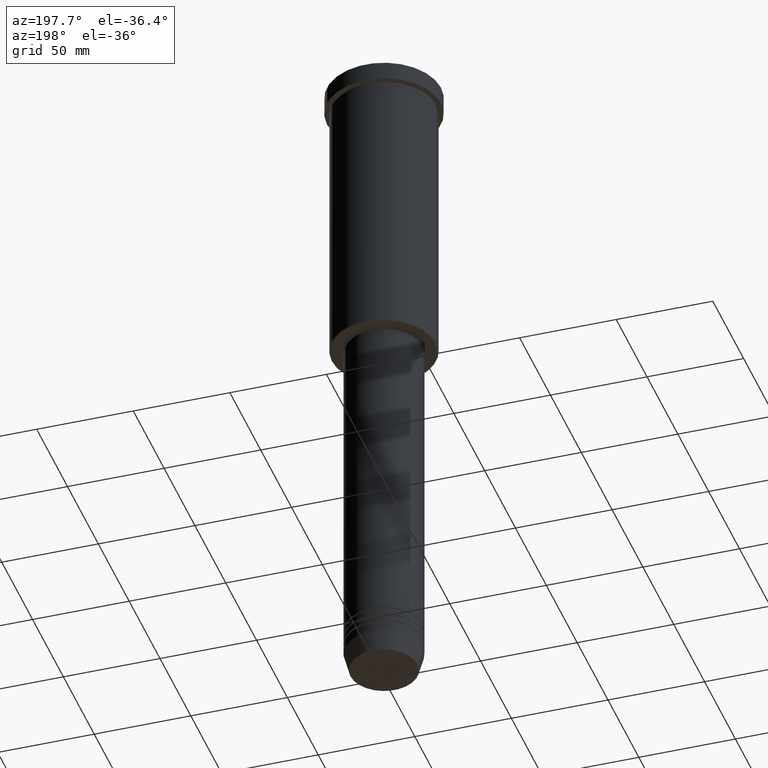
[diagram: clean part render]
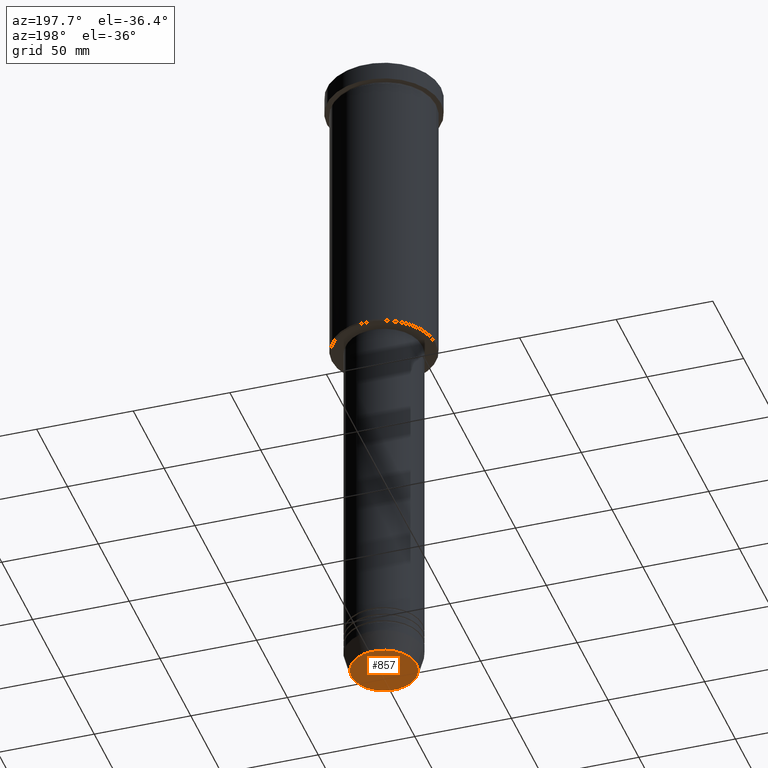
[diagram: same view with one face highlighted and labeled with its STEP entity id]
A machine part, auxiliary view. The second image highlights one B-rep face of the part: STEP entity #857.
In plain terms, the highlighted planar face has unit normal (0, -0, 1).
Its self-contained STEP definition (entity closure, byte-faithful):
#48 = DIRECTION ( 'NONE',  ( 0.000000000000000000, 0.000000000000000000, -1.000000000000000000 ) ) ;
#70 = PLANE ( 'NONE',  #1166 ) ;
#191 = CARTESIAN_POINT ( 'NONE',  ( -16.93684458169928675, 2.103738199747889592E-15, -351.0000000000000568 ) ) ;
#202 = VERTEX_POINT ( 'NONE', #191 ) ;
#258 = DIRECTION ( 'NONE',  ( 0.000000000000000000, -0.000000000000000000, 1.000000000000000000 ) ) ;
#307 = EDGE_LOOP ( 'NONE', ( #724, #927 ) ) ;
#504 = CIRCLE ( 'NONE', #1056, 16.93684458169928675 ) ;
#536 = CARTESIAN_POINT ( 'NONE',  ( 0.000000000000000000, 0.000000000000000000, -351.0000000000000568 ) ) ;
#617 = FACE_OUTER_BOUND ( 'NONE', #307, .T. ) ;
#625 = DIRECTION ( 'NONE',  ( 1.000000000000000000, 0.000000000000000000, 0.000000000000000000 ) ) ;
#637 = CIRCLE ( 'NONE', #1108, 16.93684458169928675 ) ;
#716 = DIRECTION ( 'NONE',  ( 1.000000000000000000, 0.000000000000000000, 0.000000000000000000 ) ) ;
#724 = ORIENTED_EDGE ( 'NONE', *, *, #1137, .T. ) ;
#808 = EDGE_CURVE ( 'NONE', #202, #1147, #637, .T. ) ;
#857 = ADVANCED_FACE ( 'NONE', ( #617 ), #70, .F. ) ;
#927 = ORIENTED_EDGE ( 'NONE', *, *, #808, .T. ) ;
#1038 = CARTESIAN_POINT ( 'NONE',  ( 0.000000000000000000, 0.000000000000000000, -351.0000000000000568 ) ) ;
#1043 = DIRECTION ( 'NONE',  ( 1.000000000000000000, 0.000000000000000000, 0.000000000000000000 ) ) ;
#1056 = AXIS2_PLACEMENT_3D ( 'NONE', #1038, #48, #1043 ) ;
#1080 = CARTESIAN_POINT ( 'NONE',  ( 0.000000000000000000, 0.000000000000000000, -351.0000000000000568 ) ) ;
#1085 = DIRECTION ( 'NONE',  ( 0.000000000000000000, 0.000000000000000000, -1.000000000000000000 ) ) ;
#1108 = AXIS2_PLACEMENT_3D ( 'NONE', #536, #1085, #716 ) ;
#1137 = EDGE_CURVE ( 'NONE', #1147, #202, #504, .T. ) ;
#1140 = CARTESIAN_POINT ( 'NONE',  ( 16.93684458169928675, 0.000000000000000000, -351.0000000000000568 ) ) ;
#1147 = VERTEX_POINT ( 'NONE', #1140 ) ;
#1166 = AXIS2_PLACEMENT_3D ( 'NONE', #1080, #258, #625 ) ;